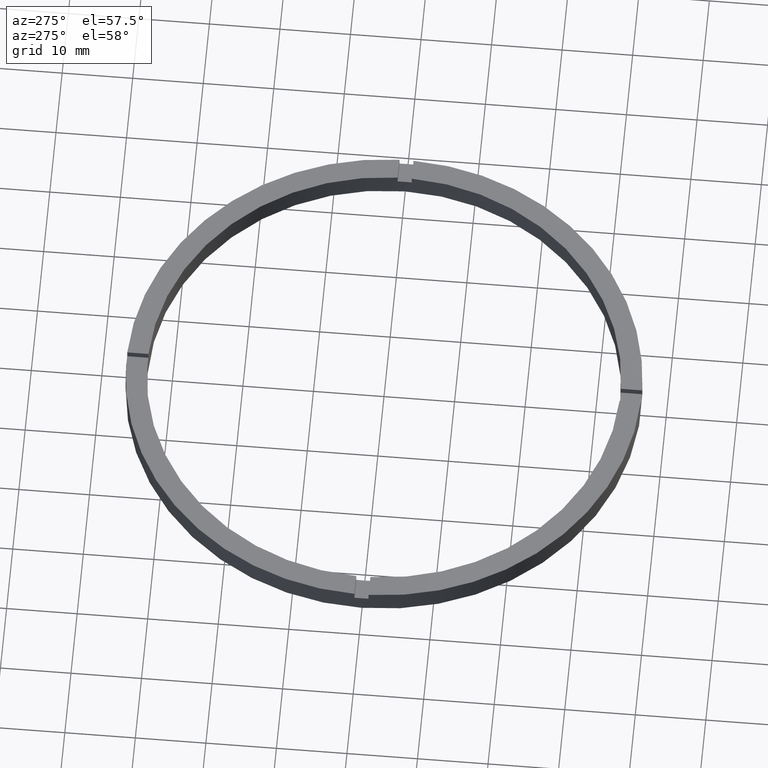
[diagram: clean part render]
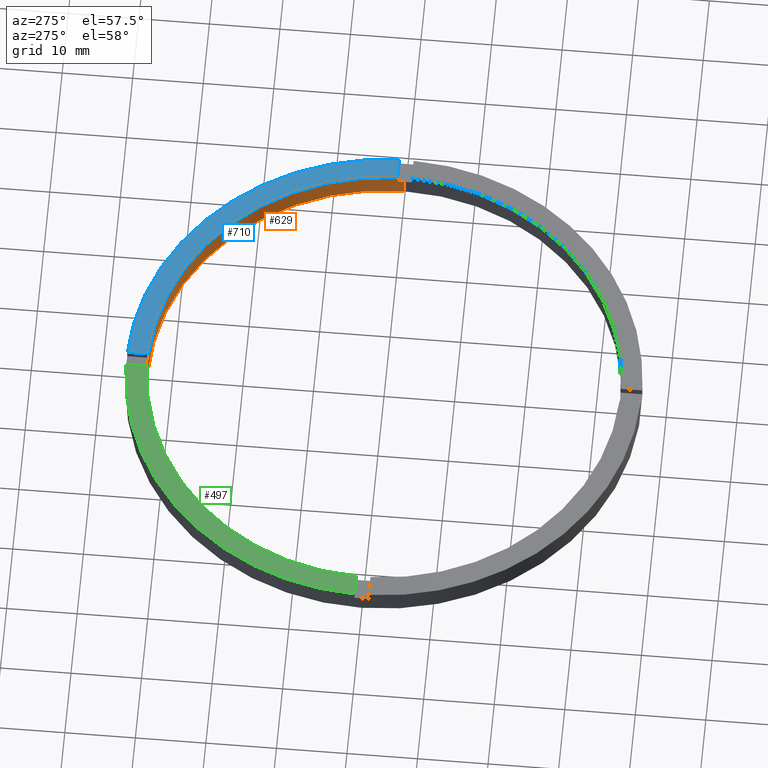
[diagram: same view with three faces highlighted in distinct colors, each labeled with its STEP entity id]
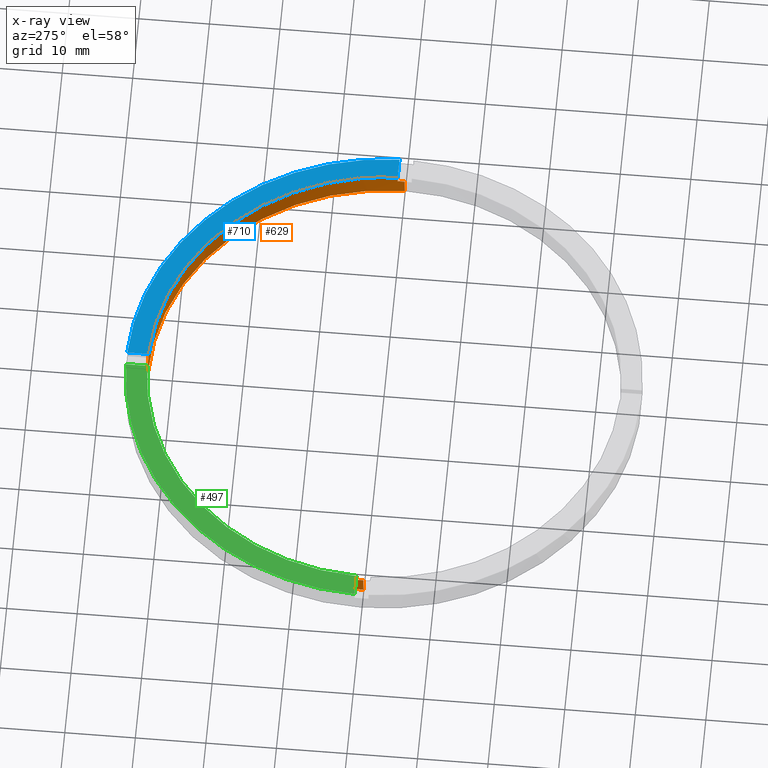
[diagram: x-ray of the same camera — body ghosted, the three highlighted faces saturated]
A machine part, auxiliary view with three faces highlighted in distinct colors.
The next image is the same camera in x-ray (body ghosted, the three faces saturated) — at least one of them is partly hidden behind the body in this view.
Their STEP definitions:

[orange] entity #629 — the highlighted cylindrical surface (partial cylindrical patch) has radius 33.5 mm, axis along (-0, -0, -1).
#4 = LINE ( 'NONE', #632, #555 ) ;
#31 = CIRCLE ( 'NONE', #397, 33.50000000000000000 ) ;
#32 = CIRCLE ( 'NONE', #573, 33.50000000000000000 ) ;
#39 = CARTESIAN_POINT ( 'NONE',  ( -33.50000000000000000, 0.000000000000000000, 2.500000000000000000 ) ) ;
#46 = VERTEX_POINT ( 'NONE', #39 ) ;
#52 = CARTESIAN_POINT ( 'NONE',  ( 0.000000000000000000, 0.000000000000000000, 3.500000000000000000 ) ) ;
#60 = VERTEX_POINT ( 'NONE', #263 ) ;
#62 = ORIENTED_EDGE ( 'NONE', *, *, #92, .T. ) ;
#79 = VERTEX_POINT ( 'NONE', #436 ) ;
#92 = EDGE_CURVE ( 'NONE', #46, #308, #109, .T. ) ;
#97 = DIRECTION ( 'NONE',  ( -0.000000000000000000, -0.000000000000000000, -1.000000000000000000 ) ) ;
#100 = CIRCLE ( 'NONE', #248, 33.50000000000000000 ) ;
#104 = CIRCLE ( 'NONE', #278, 33.50000000000000000 ) ;
#109 = LINE ( 'NONE', #131, #623 ) ;
#110 = LINE ( 'NONE', #478, #631 ) ;
#131 = CARTESIAN_POINT ( 'NONE',  ( -33.50000000000000000, 0.000000000000000000, 3.500000000000000000 ) ) ;
#141 = ORIENTED_EDGE ( 'NONE', *, *, #163, .T. ) ;
#153 = ORIENTED_EDGE ( 'NONE', *, *, #275, .F. ) ;
#162 = VERTEX_POINT ( 'NONE', #657 ) ;
#163 = EDGE_CURVE ( 'NONE', #470, #46, #104, .T. ) ;
#166 = CARTESIAN_POINT ( 'NONE',  ( -33.48507130050644776, 0.9999999999999733546, 2.500000000000000000 ) ) ;
#169 = CARTESIAN_POINT ( 'NONE',  ( 0.000000000000000000, 0.000000000000000000, 2.500000000000000000 ) ) ;
#179 = EDGE_CURVE ( 'NONE', #60, #349, #110, .T. ) ;
#181 = DIRECTION ( 'NONE',  ( 0.000000000000000000, 0.000000000000000000, 1.000000000000000000 ) ) ;
#185 = DIRECTION ( 'NONE',  ( 1.000000000000000000, 0.000000000000000000, 0.000000000000000000 ) ) ;
#206 = CARTESIAN_POINT ( 'NONE',  ( 0.000000000000000000, 0.000000000000000000, 2.500000000000000000 ) ) ;
#216 = EDGE_CURVE ( 'NONE', #162, #563, #540, .T. ) ;
#218 = CARTESIAN_POINT ( 'NONE',  ( 33.48507130050644776, 0.9999999999998421263, 3.500000000000000000 ) ) ;
#221 = DIRECTION ( 'NONE',  ( 1.000000000000000000, 0.000000000000000000, 0.000000000000000000 ) ) ;
#233 = CARTESIAN_POINT ( 'NONE',  ( 33.50000000000000000, 4.102566777143633774E-15, 0.000000000000000000 ) ) ;
#237 = DIRECTION ( 'NONE',  ( 1.000000000000000000, 0.000000000000000000, 0.000000000000000000 ) ) ;
#239 = DIRECTION ( 'NONE',  ( 0.000000000000000000, 0.000000000000000000, 1.000000000000000000 ) ) ;
#248 = AXIS2_PLACEMENT_3D ( 'NONE', #552, #181, #221 ) ;
#252 = EDGE_CURVE ( 'NONE', #162, #314, #31, .T. ) ;
#260 = CARTESIAN_POINT ( 'NONE',  ( 0.9999999999999749090, 33.48507130050644776, 3.500000000000000000 ) ) ;
#263 = CARTESIAN_POINT ( 'NONE',  ( 33.50000000000000000, 4.102566777143633774E-15, 2.500000000000000000 ) ) ;
#270 = DIRECTION ( 'NONE',  ( -0.000000000000000000, -0.000000000000000000, -1.000000000000000000 ) ) ;
#275 = EDGE_CURVE ( 'NONE', #470, #321, #4, .T. ) ;
#278 = AXIS2_PLACEMENT_3D ( 'NONE', #169, #418, #469 ) ;
#300 = ORIENTED_EDGE ( 'NONE', *, *, #252, .T. ) ;
#303 = DIRECTION ( 'NONE',  ( 0.000000000000000000, -0.000000000000000000, 1.000000000000000000 ) ) ;
#306 = VERTEX_POINT ( 'NONE', #448 ) ;
#308 = VERTEX_POINT ( 'NONE', #777 ) ;
#314 = VERTEX_POINT ( 'NONE', #495 ) ;
#321 = VERTEX_POINT ( 'NONE', #488 ) ;
#339 = CYLINDRICAL_SURFACE ( 'NONE', #729, 33.50000000000000000 ) ;
#342 = VERTEX_POINT ( 'NONE', #698 ) ;
#348 = LINE ( 'NONE', #728, #626 ) ;
#349 = VERTEX_POINT ( 'NONE', #233 ) ;
#394 = EDGE_CURVE ( 'NONE', #79, #321, #32, .T. ) ;
#397 = AXIS2_PLACEMENT_3D ( 'NONE', #206, #303, #237 ) ;
#405 = ORIENTED_EDGE ( 'NONE', *, *, #500, .T. ) ;
#409 = ORIENTED_EDGE ( 'NONE', *, *, #179, .F. ) ;
#413 = ORIENTED_EDGE ( 'NONE', *, *, #759, .F. ) ;
#418 = DIRECTION ( 'NONE',  ( 0.000000000000000000, 0.000000000000000000, 1.000000000000000000 ) ) ;
#436 = CARTESIAN_POINT ( 'NONE',  ( -1.000000000000025091, 33.48507130050644065, 3.500000000000000000 ) ) ;
#438 = DIRECTION ( 'NONE',  ( -1.000000000000000000, 0.000000000000000000, 0.000000000000000000 ) ) ;
#442 = DIRECTION ( 'NONE',  ( -0.000000000000000000, -0.000000000000000000, -1.000000000000000000 ) ) ;
#448 = CARTESIAN_POINT ( 'NONE',  ( 33.48507130050644776, 0.9999999999998421263, 3.500000000000000000 ) ) ;
#452 = AXIS2_PLACEMENT_3D ( 'NONE', #686, #733, #528 ) ;
#462 = CARTESIAN_POINT ( 'NONE',  ( 0.000000000000000000, 0.000000000000000000, 3.500000000000000000 ) ) ;
#469 = DIRECTION ( 'NONE',  ( 1.000000000000000000, 0.000000000000000000, 0.000000000000000000 ) ) ;
#470 = VERTEX_POINT ( 'NONE', #166 ) ;
#478 = CARTESIAN_POINT ( 'NONE',  ( 33.50000000000000000, 4.102566777143633774E-15, 3.500000000000000000 ) ) ;
#482 = CARTESIAN_POINT ( 'NONE',  ( 0.9999999999999749090, 33.48507130050644776, 3.500000000000000000 ) ) ;
#488 = CARTESIAN_POINT ( 'NONE',  ( -33.48507130050644776, 0.9999999999999733546, 3.500000000000000000 ) ) ;
#495 = CARTESIAN_POINT ( 'NONE',  ( -1.000000000000025091, 33.48507130050644065, 2.500000000000000000 ) ) ;
#500 = EDGE_CURVE ( 'NONE', #306, #563, #544, .T. ) ;
#528 = DIRECTION ( 'NONE',  ( 1.000000000000000000, 0.000000000000000000, 0.000000000000000000 ) ) ;
#540 = LINE ( 'NONE', #482, #568 ) ;
#544 = CIRCLE ( 'NONE', #775, 33.50000000000000000 ) ;
#552 = CARTESIAN_POINT ( 'NONE',  ( 0.000000000000000000, 0.000000000000000000, 0.000000000000000000 ) ) ;
#555 = VECTOR ( 'NONE', #642, 1000.000000000000000 ) ;
#563 = VERTEX_POINT ( 'NONE', #260 ) ;
#568 = VECTOR ( 'NONE', #734, 1000.000000000000000 ) ;
#573 = AXIS2_PLACEMENT_3D ( 'NONE', #52, #239, #185 ) ;
#582 = DIRECTION ( 'NONE',  ( -0.000000000000000000, -0.000000000000000000, -1.000000000000000000 ) ) ;
#589 = ORIENTED_EDGE ( 'NONE', *, *, #778, .F. ) ;
#592 = CIRCLE ( 'NONE', #452, 33.50000000000000000 ) ;
#607 = ORIENTED_EDGE ( 'NONE', *, *, #394, .T. ) ;
#620 = FACE_OUTER_BOUND ( 'NONE', #660, .T. ) ;
#622 = VECTOR ( 'NONE', #97, 1000.000000000000000 ) ;
#623 = VECTOR ( 'NONE', #270, 1000.000000000000000 ) ;
#626 = VECTOR ( 'NONE', #442, 1000.000000000000000 ) ;
#629 = ADVANCED_FACE ( 'NONE', ( #620 ), #339, .F. ) ;
#631 = VECTOR ( 'NONE', #582, 1000.000000000000000 ) ;
#632 = CARTESIAN_POINT ( 'NONE',  ( -33.48507130050644776, 0.9999999999999733546, 3.500000000000000000 ) ) ;
#636 = LINE ( 'NONE', #218, #622 ) ;
#642 = DIRECTION ( 'NONE',  ( 0.000000000000000000, 0.000000000000000000, 1.000000000000000000 ) ) ;
#657 = CARTESIAN_POINT ( 'NONE',  ( 0.9999999999999749090, 33.48507130050644776, 2.500000000000000000 ) ) ;
#659 = ORIENTED_EDGE ( 'NONE', *, *, #216, .F. ) ;
#660 = EDGE_LOOP ( 'NONE', ( #409, #687, #589, #405, #659, #300, #413, #607, #153, #141, #62, #672 ) ) ;
#672 = ORIENTED_EDGE ( 'NONE', *, *, #780, .F. ) ;
#686 = CARTESIAN_POINT ( 'NONE',  ( 0.000000000000000000, 0.000000000000000000, 2.500000000000000000 ) ) ;
#687 = ORIENTED_EDGE ( 'NONE', *, *, #740, .T. ) ;
#698 = CARTESIAN_POINT ( 'NONE',  ( 33.48507130050644776, 0.9999999999998421263, 2.500000000000000000 ) ) ;
#728 = CARTESIAN_POINT ( 'NONE',  ( -1.000000000000025091, 33.48507130050644065, 3.500000000000000000 ) ) ;
#729 = AXIS2_PLACEMENT_3D ( 'NONE', #462, #757, #438 ) ;
#733 = DIRECTION ( 'NONE',  ( 0.000000000000000000, 0.000000000000000000, 1.000000000000000000 ) ) ;
#734 = DIRECTION ( 'NONE',  ( 0.000000000000000000, 0.000000000000000000, 1.000000000000000000 ) ) ;
#739 = DIRECTION ( 'NONE',  ( 0.000000000000000000, 0.000000000000000000, 1.000000000000000000 ) ) ;
#740 = EDGE_CURVE ( 'NONE', #60, #342, #592, .T. ) ;
#757 = DIRECTION ( 'NONE',  ( -0.000000000000000000, -0.000000000000000000, -1.000000000000000000 ) ) ;
#759 = EDGE_CURVE ( 'NONE', #79, #314, #348, .T. ) ;
#769 = CARTESIAN_POINT ( 'NONE',  ( 0.000000000000000000, 0.000000000000000000, 3.500000000000000000 ) ) ;
#774 = DIRECTION ( 'NONE',  ( 1.000000000000000000, 0.000000000000000000, 0.000000000000000000 ) ) ;
#775 = AXIS2_PLACEMENT_3D ( 'NONE', #769, #739, #774 ) ;
#777 = CARTESIAN_POINT ( 'NONE',  ( -33.50000000000000000, 0.000000000000000000, 0.000000000000000000 ) ) ;
#778 = EDGE_CURVE ( 'NONE', #306, #342, #636, .T. ) ;
#780 = EDGE_CURVE ( 'NONE', #349, #308, #100, .T. ) ;

[blue] entity #710 — the highlighted planar face has unit normal (0, 0, 1).
#27 = DIRECTION ( 'NONE',  ( 1.000000000000000000, 0.000000000000000000, 0.000000000000000000 ) ) ;
#33 = CARTESIAN_POINT ( 'NONE',  ( 0.9999999999999749090, 26.49999999999999645, 3.500000000000000000 ) ) ;
#50 = LINE ( 'NONE', #33, #299 ) ;
#54 = ORIENTED_EDGE ( 'NONE', *, *, #756, .F. ) ;
#55 = DIRECTION ( 'NONE',  ( 0.000000000000000000, 1.000000000000000000, 0.000000000000000000 ) ) ;
#71 = VECTOR ( 'NONE', #268, 1000.000000000000000 ) ;
#83 = LINE ( 'NONE', #276, #71 ) ;
#95 = CIRCLE ( 'NONE', #702, 36.50000000000000000 ) ;
#125 = VERTEX_POINT ( 'NONE', #667 ) ;
#142 = DIRECTION ( 'NONE',  ( 1.000000000000000000, 0.000000000000000000, -0.000000000000000000 ) ) ;
#160 = ORIENTED_EDGE ( 'NONE', *, *, #500, .F. ) ;
#217 = CARTESIAN_POINT ( 'NONE',  ( 0.000000000000000000, 0.000000000000000000, 3.500000000000000000 ) ) ;
#225 = CARTESIAN_POINT ( 'NONE',  ( 0.9999999999999749090, 36.48629879831605649, 3.500000000000000000 ) ) ;
#260 = CARTESIAN_POINT ( 'NONE',  ( 0.9999999999999749090, 33.48507130050644776, 3.500000000000000000 ) ) ;
#265 = AXIS2_PLACEMENT_3D ( 'NONE', #735, #492, #142 ) ;
#268 = DIRECTION ( 'NONE',  ( -1.000000000000000000, -6.505213034913025371E-17, -0.000000000000000000 ) ) ;
#276 = CARTESIAN_POINT ( 'NONE',  ( 26.49999999999998934, 0.9999999999998416822, 3.500000000000000000 ) ) ;
#299 = VECTOR ( 'NONE', #55, 1000.000000000000000 ) ;
#306 = VERTEX_POINT ( 'NONE', #448 ) ;
#333 = DIRECTION ( 'NONE',  ( 0.000000000000000000, 0.000000000000000000, 1.000000000000000000 ) ) ;
#414 = PLANE ( 'NONE',  #265 ) ;
#417 = EDGE_LOOP ( 'NONE', ( #619, #160, #54, #752 ) ) ;
#448 = CARTESIAN_POINT ( 'NONE',  ( 33.48507130050644776, 0.9999999999998421263, 3.500000000000000000 ) ) ;
#492 = DIRECTION ( 'NONE',  ( 0.000000000000000000, 0.000000000000000000, 1.000000000000000000 ) ) ;
#500 = EDGE_CURVE ( 'NONE', #306, #563, #544, .T. ) ;
#508 = EDGE_CURVE ( 'NONE', #563, #677, #50, .T. ) ;
#544 = CIRCLE ( 'NONE', #775, 33.50000000000000000 ) ;
#563 = VERTEX_POINT ( 'NONE', #260 ) ;
#616 = FACE_OUTER_BOUND ( 'NONE', #417, .T. ) ;
#619 = ORIENTED_EDGE ( 'NONE', *, *, #508, .F. ) ;
#638 = EDGE_CURVE ( 'NONE', #125, #677, #95, .T. ) ;
#667 = CARTESIAN_POINT ( 'NONE',  ( 36.48629879831606360, 0.9999999999998423483, 3.500000000000000000 ) ) ;
#677 = VERTEX_POINT ( 'NONE', #225 ) ;
#702 = AXIS2_PLACEMENT_3D ( 'NONE', #217, #333, #27 ) ;
#710 = ADVANCED_FACE ( 'NONE', ( #616 ), #414, .T. ) ;
#735 = CARTESIAN_POINT ( 'NONE',  ( 0.000000000000000000, 0.000000000000000000, 3.500000000000000000 ) ) ;
#739 = DIRECTION ( 'NONE',  ( 0.000000000000000000, 0.000000000000000000, 1.000000000000000000 ) ) ;
#752 = ORIENTED_EDGE ( 'NONE', *, *, #638, .T. ) ;
#756 = EDGE_CURVE ( 'NONE', #125, #306, #83, .T. ) ;
#769 = CARTESIAN_POINT ( 'NONE',  ( 0.000000000000000000, 0.000000000000000000, 3.500000000000000000 ) ) ;
#774 = DIRECTION ( 'NONE',  ( 1.000000000000000000, 0.000000000000000000, 0.000000000000000000 ) ) ;
#775 = AXIS2_PLACEMENT_3D ( 'NONE', #769, #739, #774 ) ;

[green] entity #497 — the highlighted planar face has unit normal (0, 0, 1).
#2 = CARTESIAN_POINT ( 'NONE',  ( -36.48629879831605649, 0.9999999999999726885, 3.500000000000000000 ) ) ;
#13 = AXIS2_PLACEMENT_3D ( 'NONE', #753, #520, #267 ) ;
#26 = LINE ( 'NONE', #569, #287 ) ;
#32 = CIRCLE ( 'NONE', #573, 33.50000000000000000 ) ;
#52 = CARTESIAN_POINT ( 'NONE',  ( 0.000000000000000000, 0.000000000000000000, 3.500000000000000000 ) ) ;
#68 = EDGE_LOOP ( 'NONE', ( #505, #86, #228, #398 ) ) ;
#79 = VERTEX_POINT ( 'NONE', #436 ) ;
#86 = ORIENTED_EDGE ( 'NONE', *, *, #708, .T. ) ;
#185 = DIRECTION ( 'NONE',  ( 1.000000000000000000, 0.000000000000000000, 0.000000000000000000 ) ) ;
#228 = ORIENTED_EDGE ( 'NONE', *, *, #570, .F. ) ;
#230 = EDGE_CURVE ( 'NONE', #245, #79, #283, .T. ) ;
#239 = DIRECTION ( 'NONE',  ( 0.000000000000000000, 0.000000000000000000, 1.000000000000000000 ) ) ;
#243 = PLANE ( 'NONE',  #307 ) ;
#245 = VERTEX_POINT ( 'NONE', #250 ) ;
#250 = CARTESIAN_POINT ( 'NONE',  ( -1.000000000000025091, 36.48629879831605649, 3.500000000000000000 ) ) ;
#267 = DIRECTION ( 'NONE',  ( 1.000000000000000000, 0.000000000000000000, 0.000000000000000000 ) ) ;
#283 = LINE ( 'NONE', #590, #288 ) ;
#287 = VECTOR ( 'NONE', #711, 1000.000000000000000 ) ;
#288 = VECTOR ( 'NONE', #510, 1000.000000000000000 ) ;
#289 = DIRECTION ( 'NONE',  ( 1.000000000000000000, 0.000000000000000000, -0.000000000000000000 ) ) ;
#307 = AXIS2_PLACEMENT_3D ( 'NONE', #393, #618, #289 ) ;
#321 = VERTEX_POINT ( 'NONE', #488 ) ;
#345 = CIRCLE ( 'NONE', #13, 36.50000000000000000 ) ;
#393 = CARTESIAN_POINT ( 'NONE',  ( 0.000000000000000000, 0.000000000000000000, 3.500000000000000000 ) ) ;
#394 = EDGE_CURVE ( 'NONE', #79, #321, #32, .T. ) ;
#398 = ORIENTED_EDGE ( 'NONE', *, *, #394, .F. ) ;
#436 = CARTESIAN_POINT ( 'NONE',  ( -1.000000000000025091, 33.48507130050644065, 3.500000000000000000 ) ) ;
#488 = CARTESIAN_POINT ( 'NONE',  ( -33.48507130050644776, 0.9999999999999733546, 3.500000000000000000 ) ) ;
#497 = ADVANCED_FACE ( 'NONE', ( #567 ), #243, .T. ) ;
#505 = ORIENTED_EDGE ( 'NONE', *, *, #230, .F. ) ;
#510 = DIRECTION ( 'NONE',  ( -0.000000000000000000, -1.000000000000000000, -0.000000000000000000 ) ) ;
#520 = DIRECTION ( 'NONE',  ( 0.000000000000000000, 0.000000000000000000, 1.000000000000000000 ) ) ;
#567 = FACE_OUTER_BOUND ( 'NONE', #68, .T. ) ;
#569 = CARTESIAN_POINT ( 'NONE',  ( -26.50000000000018474, 0.9999999999999746869, 3.500000000000000000 ) ) ;
#570 = EDGE_CURVE ( 'NONE', #321, #586, #26, .T. ) ;
#573 = AXIS2_PLACEMENT_3D ( 'NONE', #52, #239, #185 ) ;
#586 = VERTEX_POINT ( 'NONE', #2 ) ;
#590 = CARTESIAN_POINT ( 'NONE',  ( -1.000000000000025091, 26.49999999999999645, 3.500000000000000000 ) ) ;
#618 = DIRECTION ( 'NONE',  ( 0.000000000000000000, 0.000000000000000000, 1.000000000000000000 ) ) ;
#708 = EDGE_CURVE ( 'NONE', #245, #586, #345, .T. ) ;
#711 = DIRECTION ( 'NONE',  ( -1.000000000000000000, -1.951563910473907735E-16, 0.000000000000000000 ) ) ;
#753 = CARTESIAN_POINT ( 'NONE',  ( 0.000000000000000000, 0.000000000000000000, 3.500000000000000000 ) ) ;